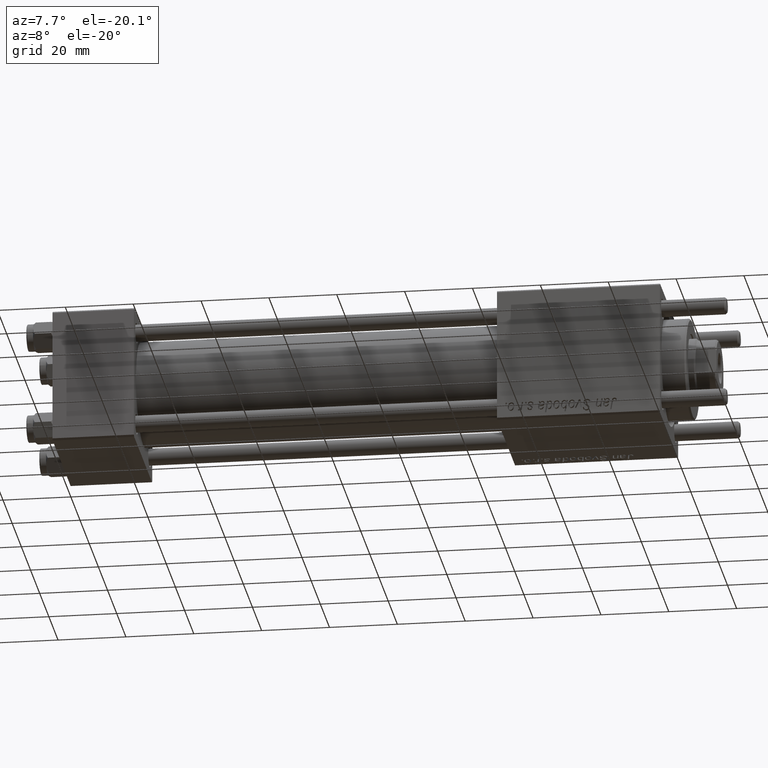
[diagram: clean part render]
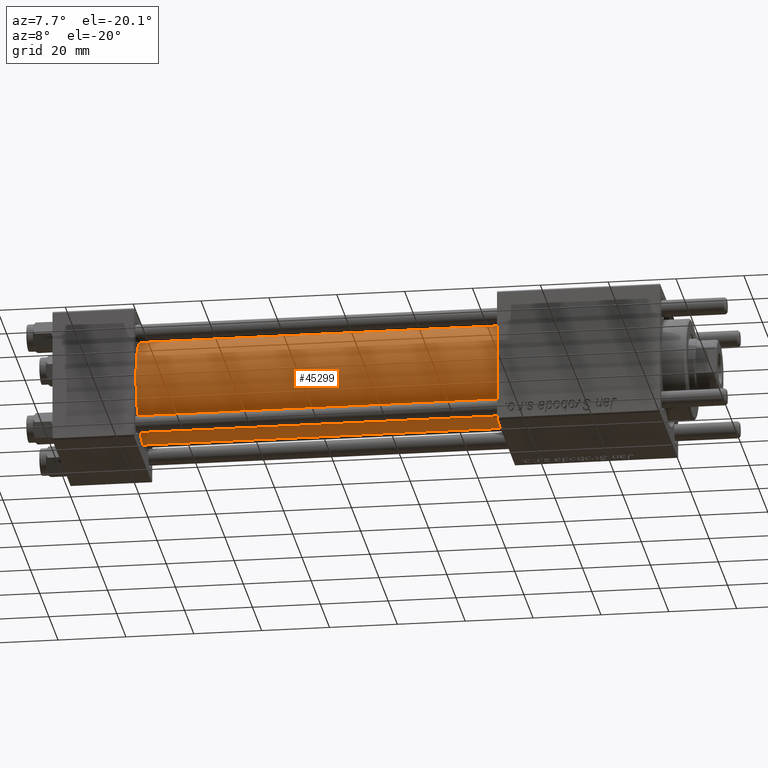
[diagram: same view with one face highlighted and labeled with its STEP entity id]
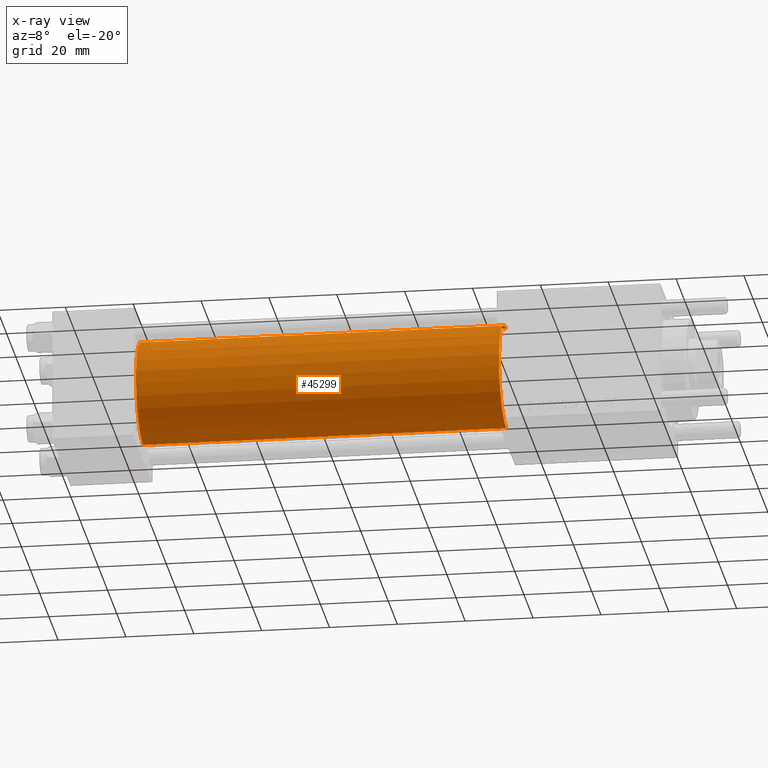
[diagram: x-ray of the same camera — body ghosted, the highlighted face saturated]
A machine part, auxiliary view. The second image highlights one B-rep face of the part: STEP entity #45299.
The next image is the same camera in x-ray: the body ghosted, the highlighted face saturated — about 0% of this face is hidden behind the body in this view.
In plain terms, the highlighted cylindrical surface (partial cylindrical patch) has radius 15.5 mm, axis along (-1, -0, -0).
Its self-contained STEP definition (entity closure, byte-faithful):
#329 = DIRECTION ( 'NONE',  ( 1.000000000000000000, 0.000000000000000000, 0.000000000000000000 ) ) ;
#3404 = CARTESIAN_POINT ( 'NONE',  ( 23.99999999999999289, -2.602085213965210642E-15, 0.000000000000000000 ) ) ;
#5710 = VECTOR ( 'NONE', #47180, 1000.000000000000000 ) ;
#5738 = VERTEX_POINT ( 'NONE', #9411 ) ;
#6384 = ORIENTED_EDGE ( 'NONE', *, *, #10590, .T. ) ;
#8642 = ORIENTED_EDGE ( 'NONE', *, *, #36933, .F. ) ;
#9411 = CARTESIAN_POINT ( 'NONE',  ( 23.99999999999999289, -7.038826752868131828E-16, -15.50000000000000000 ) ) ;
#10590 = EDGE_CURVE ( 'NONE', #22907, #11146, #42666, .T. ) ;
#11043 = CARTESIAN_POINT ( 'NONE',  ( 131.0000000000000000, -7.038826752868131828E-16, -15.50000000000000000 ) ) ;
#11146 = VERTEX_POINT ( 'NONE', #30786 ) ;
#12323 = VECTOR ( 'NONE', #55855, 1000.000000000000000 ) ;
#16863 = DIRECTION ( 'NONE',  ( 1.000000000000000000, 0.000000000000000000, 0.000000000000000000 ) ) ;
#17450 = ORIENTED_EDGE ( 'NONE', *, *, #40940, .F. ) ;
#17801 = CARTESIAN_POINT ( 'NONE',  ( 131.0000000000000000, -2.602085213965210642E-15, 0.000000000000000000 ) ) ;
#19538 = AXIS2_PLACEMENT_3D ( 'NONE', #40748, #27564, #45030 ) ;
#20906 = DIRECTION ( 'NONE',  ( 0.000000000000000000, 0.000000000000000000, 1.000000000000000000 ) ) ;
#22907 = VERTEX_POINT ( 'NONE', #33865 ) ;
#22970 = DIRECTION ( 'NONE',  ( 0.000000000000000000, 0.000000000000000000, -1.000000000000000000 ) ) ;
#26719 = FACE_OUTER_BOUND ( 'NONE', #49869, .T. ) ;
#27564 = DIRECTION ( 'NONE',  ( -1.000000000000000000, -0.000000000000000000, -0.000000000000000000 ) ) ;
#27977 = AXIS2_PLACEMENT_3D ( 'NONE', #3404, #16863, #20906 ) ;
#30786 = CARTESIAN_POINT ( 'NONE',  ( 23.99999999999999289, -2.602085213965210642E-15, 15.50000000000000000 ) ) ;
#33865 = CARTESIAN_POINT ( 'NONE',  ( 131.0000000000000000, -2.602085213965210642E-15, 15.50000000000000000 ) ) ;
#34097 = CIRCLE ( 'NONE', #41410, 15.50000000000000000 ) ;
#36933 = EDGE_CURVE ( 'NONE', #22907, #55831, #34097, .T. ) ;
#38385 = CARTESIAN_POINT ( 'NONE',  ( 131.0000000000000000, -2.602085213965210642E-15, 15.50000000000000000 ) ) ;
#40748 = CARTESIAN_POINT ( 'NONE',  ( 131.0000000000000000, -2.602085213965210642E-15, 0.000000000000000000 ) ) ;
#40940 = EDGE_CURVE ( 'NONE', #55831, #5738, #50632, .T. ) ;
#41410 = AXIS2_PLACEMENT_3D ( 'NONE', #17801, #329, #22970 ) ;
#42666 = LINE ( 'NONE', #38385, #12323 ) ;
#43527 = CIRCLE ( 'NONE', #27977, 15.50000000000000000 ) ;
#45030 = DIRECTION ( 'NONE',  ( 0.000000000000000000, 0.000000000000000000, 1.000000000000000000 ) ) ;
#45299 = ADVANCED_FACE ( 'NONE', ( #26719 ), #49063, .T. ) ;
#46333 = CARTESIAN_POINT ( 'NONE',  ( 131.0000000000000000, -7.038826752868131828E-16, -15.50000000000000000 ) ) ;
#47180 = DIRECTION ( 'NONE',  ( -1.000000000000000000, -0.000000000000000000, -0.000000000000000000 ) ) ;
#49034 = ORIENTED_EDGE ( 'NONE', *, *, #55804, .T. ) ;
#49063 = CYLINDRICAL_SURFACE ( 'NONE', #19538, 15.50000000000000000 ) ;
#49869 = EDGE_LOOP ( 'NONE', ( #17450, #8642, #6384, #49034 ) ) ;
#50632 = LINE ( 'NONE', #46333, #5710 ) ;
#55804 = EDGE_CURVE ( 'NONE', #11146, #5738, #43527, .T. ) ;
#55831 = VERTEX_POINT ( 'NONE', #11043 ) ;
#55855 = DIRECTION ( 'NONE',  ( -1.000000000000000000, -0.000000000000000000, -0.000000000000000000 ) ) ;